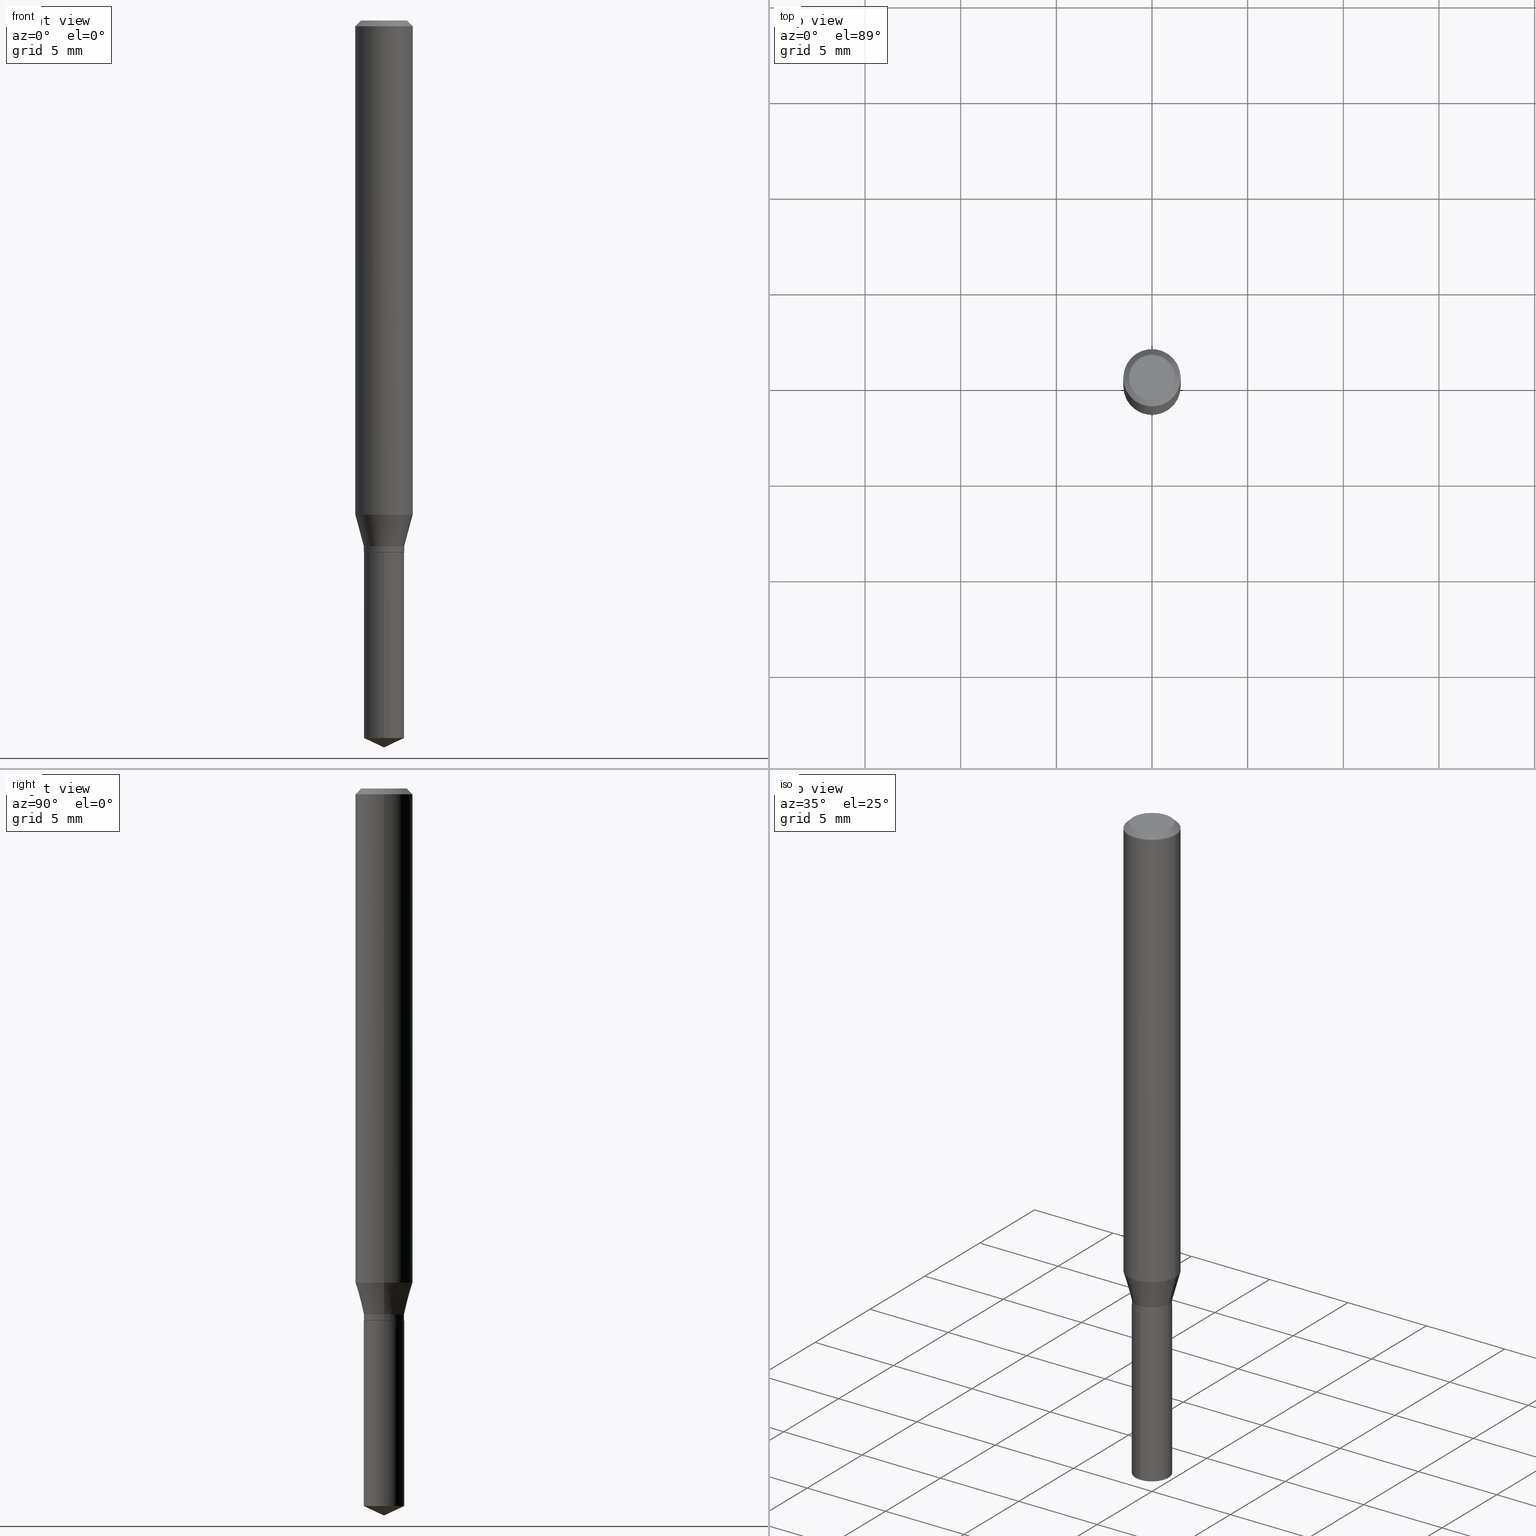
[diagram: canonical four-view strip — front | top / right | iso, engineering-drawing reading convention]
A machine part, canonical four-view strip (front | top / right | iso — engineering-drawing reading convention). The complete STEP part file that produces these views, byte-faithful:
ISO-10303-21;
HEADER;
FILE_DESCRIPTION (( 'STEP AP203' ),
    '1' );
FILE_NAME ('07958.STEP',
    '2024-04-24T07:15:58',
    ( '' ),
    ( '' ),
    'SwSTEP 2.0',
    'SolidWorks 2023',
    '' );
FILE_SCHEMA (( 'CONFIG_CONTROL_DESIGN' ));
ENDSEC;

DATA;
#1 = DIRECTION ( 'NONE',  ( -2.445468806185136597E-29, 3.491481338843145583E-15, 1.000000000000000000 ) ) ;
#2 = DIRECTION ( 'NONE',  ( -2.445458899330790108E-29, 3.491495526022433205E-15, 1.000000000000000000 ) ) ;
#3 = CARTESIAN_POINT ( 'NONE',  ( 2.676565608369631794E-29, -3.821426325363822773E-15, -1.094499999999999806 ) ) ;
#4 = VERTEX_POINT ( 'NONE', #158 ) ;
#5 = AXIS2_PLACEMENT_3D ( 'NONE', #318, #328, #486 ) ;
#6 = CARTESIAN_POINT ( 'NONE',  ( 2.676565608369631794E-29, -3.821426325363822773E-15, -1.094499999999999806 ) ) ;
#7 = VERTEX_POINT ( 'NONE', #412 ) ;
#8 = DIRECTION ( 'NONE',  ( -6.328713451373376478E-15, -0.9063077870366493816, 0.4226182617407006070 ) ) ;
#9 = ORIENTED_EDGE ( 'NONE', *, *, #202, .T. ) ;
#10 = DIRECTION ( 'NONE',  ( 1.000000000000000000, -6.982962677686268288E-15, 0.000000000000000000 ) ) ;
#11 = ORIENTED_EDGE ( 'NONE', *, *, #161, .F. ) ;
#12 = AXIS2_PLACEMENT_3D ( 'NONE', #277, #174, #350 ) ;
#13 = DIRECTION ( 'NONE',  ( -2.445458899330790108E-29, 3.491495526022433205E-15, 1.000000000000000000 ) ) ;
#14 = LOCAL_TIME ( 3, 15, 58.00000000000000000, #20 ) ;
#15 = EDGE_LOOP ( 'NONE', ( #53, #269, #306, #420 ) ) ;
#16 = APPROVAL_ROLE ( '' ) ;
#17 = DIRECTION ( 'NONE',  ( 6.982962677686265922E-15, 1.000000000000000000, -3.491495526022433599E-15 ) ) ;
#18 = DIRECTION ( 'NONE',  ( 1.000000000000000000, -6.982962677686270655E-15, 0.000000000000000000 ) ) ;
#19 = EDGE_LOOP ( 'NONE', ( #275, #231, #358, #194 ) ) ;
#20 = COORDINATED_UNIVERSAL_TIME_OFFSET ( 5, 0, .BEHIND. ) ;
#21 = AXIS2_PLACEMENT_3D ( 'NONE', #3, #164, #300 ) ;
#22 = DIRECTION ( 'NONE',  ( -2.445468806185136597E-29, 3.491481338843145583E-15, 1.000000000000000000 ) ) ;
#23 = AXIS2_PLACEMENT_3D ( 'NONE', #213, #276, #472 ) ;
#24 = ORIENTED_EDGE ( 'NONE', *, *, #238, .F. ) ;
#25 = DIRECTION ( 'NONE',  ( -2.445458899330790108E-29, 3.491495526022433599E-15, 1.000000000000000000 ) ) ;
#26 = EDGE_CURVE ( 'NONE', #7, #339, #165, .T. ) ;
#27 = ORIENTED_EDGE ( 'NONE', *, *, #180, .T. ) ;
#28 = CARTESIAN_POINT ( 'NONE',  ( -0.05905000000000000526, 3.711095515056362547E-16, -0.01181000000000007565 ) ) ;
#29 = DATE_AND_TIME ( #478, #310 ) ;
#30 = DIRECTION ( 'NONE',  ( -2.445458899330790108E-29, 3.491495526022433205E-15, 1.000000000000000000 ) ) ;
#31 = CIRCLE ( 'NONE', #397, 0.04154999999999999666 ) ;
#32 = PERSON_AND_ORGANIZATION_ROLE ( 'design_supplier' ) ;
#33 = EDGE_LOOP ( 'NONE', ( #282, #230 ) ) ;
#34 = DIRECTION ( 'NONE',  ( -2.445468806185136597E-29, 3.491481338843145583E-15, 1.000000000000000000 ) ) ;
#35 = CONICAL_SURFACE ( 'NONE', #404, 0.04104999999999999621, 0.7853981633973801113 ) ;
#36 = AXIS2_PLACEMENT_3D ( 'NONE', #428, #247, #380 ) ;
#37 = MANIFOLD_SOLID_BREP ( 'Body-Move/Copy2[2]', #98 ) ;
#38 = DIRECTION ( 'NONE',  ( -6.982962677686265133E-15, -1.000000000000000000, 3.287422375047248476E-15 ) ) ;
#39 = DIRECTION ( 'NONE',  ( 1.000000000000000000, -6.982962677686270655E-15, 0.000000000000000000 ) ) ;
#40 = PRODUCT_DEFINITION ( 'UNKNOWN', '', #46, #453 ) ;
#41 = ORIENTED_EDGE ( 'NONE', *, *, #61, .T. ) ;
#42 = CARTESIAN_POINT ( 'NONE',  ( 0.04154999999999996196, -4.109822683952264629E-15, -1.093999999999999861 ) ) ;
#43 = CC_DESIGN_PERSON_AND_ORGANIZATION_ASSIGNMENT ( #295, #32, ( #46 ) ) ;
#44 = EDGE_LOOP ( 'NONE', ( #103, #88, #229, #11 ) ) ;
#45 = CONICAL_SURFACE ( 'NONE', #109, 0.05905000000000000526, 0.7853981633974453924 ) ;
#46 = PRODUCT_DEFINITION_FORMATION_WITH_SPECIFIED_SOURCE ( 'ANY', '', #212, .NOT_KNOWN. ) ;
#47 = FACE_OUTER_BOUND ( 'NONE', #480, .T. ) ;
#48 = ORIENTED_EDGE ( 'NONE', *, *, #329, .T. ) ;
#49 = CARTESIAN_POINT ( 'NONE',  ( 2.952305067083577432E-16, 0.04154999999999484800, -1.476724916803660026 ) ) ;
#50 = ORIENTED_EDGE ( 'NONE', *, *, #61, .F. ) ;
#51 = CARTESIAN_POINT ( 'NONE',  ( 3.658672935554494692E-29, -5.223595400746700193E-15, -1.496099999999999985 ) ) ;
#52 = CARTESIAN_POINT ( 'NONE',  ( 3.611280932713112660E-29, -5.155962912318098276E-15, -1.476724916803659804 ) ) ;
#53 = ORIENTED_EDGE ( 'NONE', *, *, #256, .F. ) ;
#54 = PERSON_AND_ORGANIZATION ( #294, #346 ) ;
#55 = CIRCLE ( 'NONE', #23, 0.04154999999999996196 ) ;
#56 = AXIS2_PLACEMENT_3D ( 'NONE', #129, #387, #242 ) ;
#57 = DIRECTION ( 'NONE',  ( 1.000000000000000000, -6.982962677686266711E-15, 4.876176775795936353E-29 ) ) ;
#58 = ADVANCED_FACE ( 'NONE', ( #369 ), #427, .T. ) ;
#59 = CARTESIAN_POINT ( 'NONE',  ( -0.04154999999999996196, -3.503501189953020194E-15, -1.093999999999999861 ) ) ;
#60 = CARTESIAN_POINT ( 'NONE',  ( 2.676565608369631794E-29, -3.821426325363822773E-15, -1.094499999999999806 ) ) ;
#61 = EDGE_CURVE ( 'NONE', #237, #123, #452, .T. ) ;
#62 = FACE_OUTER_BOUND ( 'NONE', #74, .T. ) ;
#63 = CARTESIAN_POINT ( 'NONE',  ( 2.676565608369631794E-29, -3.821426325363822773E-15, -1.094499999999999806 ) ) ;
#64 = DIRECTION ( 'NONE',  ( 2.445468806185136597E-29, -3.491481338843145583E-15, -1.000000000000000000 ) ) ;
#65 = AXIS2_PLACEMENT_3D ( 'NONE', #77, #298, #78 ) ;
#66 = CARTESIAN_POINT ( 'NONE',  ( -2.901420992578375736E-16, -0.04155000000000381999, -1.094499999999999806 ) ) ;
#67 = VECTOR ( 'NONE', #466, 39.37007874015748143 ) ;
#68 = APPROVAL_ROLE ( '' ) ;
#69 = DIRECTION ( 'NONE',  ( -2.445468806185136597E-29, 3.491481338843145583E-15, 1.000000000000000000 ) ) ;
#70 = DIRECTION ( 'NONE',  ( -2.445458899330790108E-29, 3.491495526022433205E-15, 1.000000000000000000 ) ) ;
#71 = DATE_AND_TIME ( #443, #90 ) ;
#72 = ORIENTED_EDGE ( 'NONE', *, *, #442, .T. ) ;
#73 = AXIS2_PLACEMENT_3D ( 'NONE', #390, #13, #311 ) ;
#74 = EDGE_LOOP ( 'NONE', ( #147, #477, #383, #266 ) ) ;
#75 = ADVANCED_FACE ( 'NONE', ( #198 ), #408, .T. ) ;
#76 = ORIENTED_EDGE ( 'NONE', *, *, #180, .F. ) ;
#77 = CARTESIAN_POINT ( 'NONE',  ( 2.676565608369631794E-29, -3.821426325363822773E-15, -1.094499999999999806 ) ) ;
#78 = DIRECTION ( 'NONE',  ( -6.982962677686265133E-15, -1.000000000000000000, 3.287422375047248476E-15 ) ) ;
#79 = AXIS2_PLACEMENT_3D ( 'NONE', #6, #2, #38 ) ;
#80 = ORIENTED_EDGE ( 'NONE', *, *, #403, .T. ) ;
#81 = EDGE_CURVE ( 'NONE', #339, #195, #373, .T. ) ;
#82 = CARTESIAN_POINT ( 'NONE',  ( 0.04104999999999999621, -4.108076943282843915E-15, -1.094499999999999806 ) ) ;
#83 = EDGE_LOOP ( 'NONE', ( #141, #297, #193, #169 ) ) ;
#84 = CARTESIAN_POINT ( 'NONE',  ( 0.04154999999999996196, -4.067924907886146966E-15, -1.081999999999999851 ) ) ;
#85 = EDGE_CURVE ( 'NONE', #7, #334, #260, .T. ) ;
#86 = ORIENTED_EDGE ( 'NONE', *, *, #352, .T. ) ;
#87 = CARTESIAN_POINT ( 'NONE',  ( 2.486281506214680923E-29, -3.549751057999059789E-15, -1.016689110867543988 ) ) ;
#88 = ORIENTED_EDGE ( 'NONE', *, *, #421, .T. ) ;
#89 = AXIS2_PLACEMENT_3D ( 'NONE', #94, #342, #18 ) ;
#90 = LOCAL_TIME ( 3, 15, 58.00000000000000000, #321 ) ;
#91 = CARTESIAN_POINT ( 'NONE',  ( -0.04154999999999996196, -3.503501189953020194E-15, -1.081999999999999851 ) ) ;
#92 = ADVANCED_FACE ( 'NONE', ( #47 ), #35, .T. ) ;
#93 = CARTESIAN_POINT ( 'NONE',  ( 2.888098660104664642E-31, -4.123439461173780879E-17, -0.01181000000000007565 ) ) ;
#94 = CARTESIAN_POINT ( 'NONE',  ( 2.676565608369631794E-29, -3.821426325363822773E-15, -1.094499999999999806 ) ) ;
#95 = EDGE_LOOP ( 'NONE', ( #186, #48, #27, #127 ) ) ;
#96 = CYLINDRICAL_SURFACE ( 'NONE', #216, 0.04154999999999996196 ) ;
#97 = CARTESIAN_POINT ( 'NONE',  ( -0.05905000000000000526, -1.375917240839058674E-15, -0.01181000000000007565 ) ) ;
#98 = CLOSED_SHELL ( 'NONE', ( #92, #458, #360, #368, #489, #475, #332, #251, #199, #118, #146, #58 ) ) ;
#99 = DIRECTION ( 'NONE',  ( 1.000000000000000000, -6.982962677686267499E-15, 4.876176775795935793E-29 ) ) ;
#100 = AXIS2_PLACEMENT_3D ( 'NONE', #433, #278, #57 ) ;
#101 = EDGE_CURVE ( 'NONE', #464, #123, #288, .T. ) ;
#102 = FACE_OUTER_BOUND ( 'NONE', #374, .T. ) ;
#103 = ORIENTED_EDGE ( 'NONE', *, *, #184, .T. ) ;
#104 = PERSON_AND_ORGANIZATION_ROLE ( 'creator' ) ;
#105 = DIRECTION ( 'NONE',  ( -2.445458899330790108E-29, 3.491495526022433205E-15, 1.000000000000000000 ) ) ;
#106 = DIRECTION ( 'NONE',  ( -2.445468806185136597E-29, 3.491481338843145583E-15, 1.000000000000000000 ) ) ;
#107 = FACE_OUTER_BOUND ( 'NONE', #270, .T. ) ;
#108 = LINE ( 'NONE', #28, #223 ) ;
#109 = AXIS2_PLACEMENT_3D ( 'NONE', #93, #64, #307 ) ;
#110 = CC_DESIGN_DATE_AND_TIME_ASSIGNMENT ( #71, #112, ( #430 ) ) ;
#111 = DIRECTION ( 'NONE',  ( -0.7071067811865454633, 2.468850131082235367E-15, -0.7071067811865495711 ) ) ;
#112 = DATE_TIME_ROLE ( 'classification_date' ) ;
#113 = PERSON_AND_ORGANIZATION ( #294, #346 ) ;
#114 = ORIENTED_EDGE ( 'NONE', *, *, #184, .F. ) ;
#115 = AXIS2_PLACEMENT_3D ( 'NONE', #392, #343, #215 ) ;
#116 = ORIENTED_EDGE ( 'NONE', *, *, #386, .F. ) ;
#117 = DIRECTION ( 'NONE',  ( -2.445468806185136597E-29, 3.491481338843145583E-15, 1.000000000000000000 ) ) ;
#118 = ADVANCED_FACE ( 'NONE', ( #168 ), #451, .F. ) ;
#119 = DIRECTION ( 'NONE',  ( 1.000000000000000000, -6.982962677686270655E-15, 0.000000000000000000 ) ) ;
#120 = CIRCLE ( 'NONE', #89, 0.04104999999999999621 ) ;
#121 = CARTESIAN_POINT ( 'NONE',  ( 0.05905000000000006771, -4.123439461173745257E-16, 2.879382386107503723E-30 ) ) ;
#122 = EDGE_LOOP ( 'NONE', ( #409, #303, #41, #171 ) ) ;
#123 = VERTEX_POINT ( 'NONE', #42 ) ;
#124 = CARTESIAN_POINT ( 'NONE',  ( -2.901420992578375736E-16, -0.04155000000000381999, -1.094499999999999806 ) ) ;
#125 = EDGE_CURVE ( 'NONE', #304, #4, #136, .T. ) ;
#126 = AXIS2_PLACEMENT_3D ( 'NONE', #160, #117, #262 ) ;
#127 = ORIENTED_EDGE ( 'NONE', *, *, #352, .F. ) ;
#128 = CYLINDRICAL_SURFACE ( 'NONE', #115, 0.04154999999999996196 ) ;
#129 = CARTESIAN_POINT ( 'NONE',  ( 2.645997248292317363E-29, -3.777782808628282818E-15, -1.081999999999999851 ) ) ;
#130 = ORIENTED_EDGE ( 'NONE', *, *, #319, .T. ) ;
#131 = PERSON_AND_ORGANIZATION_ROLE ( 'design_owner' ) ;
#132 = DIRECTION ( 'NONE',  ( -2.445458899330790108E-29, 3.491495526022433599E-15, 1.000000000000000000 ) ) ;
#133 = ORIENTED_EDGE ( 'NONE', *, *, #125, .T. ) ;
#134 = EDGE_CURVE ( 'NONE', #339, #7, #317, .T. ) ;
#135 = CARTESIAN_POINT ( 'NONE',  ( 0.05905000000000000526, -4.463468013801467941E-16, -0.01181000000000007565 ) ) ;
#136 = CIRCLE ( 'NONE', #65, 0.04154999999999999666 ) ;
#137 = CARTESIAN_POINT ( 'NONE',  ( 8.265746106709734507E-48, -1.180129479067563789E-33, -3.380025165646692144E-19 ) ) ;
#138 = AXIS2_PLACEMENT_3D ( 'NONE', #137, #106, #312 ) ;
#139 = DIRECTION ( 'NONE',  ( -0.7071067811864992780, 7.493145998870180611E-15, 0.7071067811865957564 ) ) ;
#140 = EDGE_CURVE ( 'NONE', #394, #467, #190, .T. ) ;
#141 = ORIENTED_EDGE ( 'NONE', *, *, #421, .F. ) ;
#142 = DATE_AND_TIME ( #474, #14 ) ;
#143 = LINE ( 'NONE', #257, #484 ) ;
#144 = COORDINATED_UNIVERSAL_TIME_OFFSET ( 5, 0, .BEHIND. ) ;
#145 = DIRECTION ( 'NONE',  ( -6.982962677686265133E-15, -1.000000000000000000, 3.287422375047248476E-15 ) ) ;
#146 = ADVANCED_FACE ( 'NONE', ( #335 ), #454, .F. ) ;
#147 = ORIENTED_EDGE ( 'NONE', *, *, #202, .F. ) ;
#148 = COORDINATED_UNIVERSAL_TIME_OFFSET ( 5, 0, .BEHIND. ) ;
#149 = AXIS2_PLACEMENT_3D ( 'NONE', #52, #105, #419 ) ;
#150 = CARTESIAN_POINT ( 'NONE',  ( -2.901420992578283045E-16, -0.04155000000000516613, -1.476724916803659582 ) ) ;
#151 = CIRCLE ( 'NONE', #138, 0.04724000000000000421 ) ;
#152 = APPROVAL_PERSON_ORGANIZATION ( #54, #309, #16 ) ;
#153 = APPLICATION_CONTEXT ( 'configuration controlled 3d designs of mechanical parts and assemblies' ) ;
#154 = PERSON_AND_ORGANIZATION ( #294, #346 ) ;
#155 = CARTESIAN_POINT ( 'NONE',  ( 2.645997248292317363E-29, -3.777782808628282818E-15, -1.081999999999999851 ) ) ;
#156 = EDGE_LOOP ( 'NONE', ( #72, #206 ) ) ;
#157 = VECTOR ( 'NONE', #461, 39.37007874015747433 ) ;
#158 = CARTESIAN_POINT ( 'NONE',  ( 2.952305067083576939E-16, 0.04154999999999617333, -1.094500000000000028 ) ) ;
#159 = AXIS2_PLACEMENT_3D ( 'NONE', #183, #69, #357 ) ;
#160 = CARTESIAN_POINT ( 'NONE',  ( 8.265746106709734507E-48, -1.180129479067563789E-33, -3.380025165646692144E-19 ) ) ;
#161 = EDGE_CURVE ( 'NONE', #431, #7, #459, .T. ) ;
#162 = DIRECTION ( 'NONE',  ( -2.445468806185136597E-29, 3.491481338843145583E-15, 1.000000000000000000 ) ) ;
#163 = ORIENTED_EDGE ( 'NONE', *, *, #485, .F. ) ;
#164 = DIRECTION ( 'NONE',  ( -2.438088387897960049E-29, 3.491481338843145188E-15, 1.000000000000000000 ) ) ;
#165 = CIRCLE ( 'NONE', #253, 0.05905000000000013016 ) ;
#166 = AXIS2_PLACEMENT_3D ( 'NONE', #63, #349, #17 ) ;
#167 = VERTEX_POINT ( 'NONE', #91 ) ;
#168 = FACE_OUTER_BOUND ( 'NONE', #156, .T. ) ;
#169 = ORIENTED_EDGE ( 'NONE', *, *, #134, .F. ) ;
#170 = LINE ( 'NONE', #425, #327 ) ;
#171 = ORIENTED_EDGE ( 'NONE', *, *, #101, .F. ) ;
#172 = FACE_OUTER_BOUND ( 'NONE', #320, .T. ) ;
#173 = CONICAL_SURFACE ( 'NONE', #73, 84.42940631927444883, 1.134464013796316451 ) ;
#174 = DIRECTION ( 'NONE',  ( 0.000000000000000000, 0.000000000000000000, 1.000000000000000000 ) ) ;
#175 = DIRECTION ( 'NONE',  ( -2.445468806185136877E-29, 3.491481338843145188E-15, 1.000000000000000000 ) ) ;
#176 = EDGE_CURVE ( 'NONE', #416, #222, #417, .T. ) ;
#177 = LENGTH_MEASURE_WITH_UNIT ( LENGTH_MEASURE( 0.02539999999999999897 ), #395 );
#178 = DIRECTION ( 'NONE',  ( -6.982962677686265133E-15, -1.000000000000000000, 3.287422375047248476E-15 ) ) ;
#179 = MECHANICAL_CONTEXT ( 'NONE', #153, 'mechanical' ) ;
#180 = EDGE_CURVE ( 'NONE', #334, #195, #483, .T. ) ;
#181 = CARTESIAN_POINT ( 'NONE',  ( -0.04154999999999996196, 2.952305067083213570E-16, -2.043817530000911586E-30 ) ) ;
#182 = VECTOR ( 'NONE', #268, 39.37007874015748143 ) ;
#183 = CARTESIAN_POINT ( 'NONE',  ( 0.000000000000000000, 0.000000000000000000, 0.000000000000000000 ) ) ;
#184 = EDGE_CURVE ( 'NONE', #431, #167, #55, .T. ) ;
#185 = CARTESIAN_POINT ( 'NONE',  ( 0.04724000000000000421, -3.852183633974369838E-16, -3.380025165621689721E-19 ) ) ;
#186 = ORIENTED_EDGE ( 'NONE', *, *, #140, .F. ) ;
#187 = CARTESIAN_POINT ( 'NONE',  ( 2.676565608369631794E-29, -3.821426325363822773E-15, -1.094499999999999806 ) ) ;
#188 = CC_DESIGN_PERSON_AND_ORGANIZATION_ASSIGNMENT ( #448, #362, ( #46 ) ) ;
#189 = APPROVAL_DATE_TIME ( #29, #445 ) ;
#190 = CIRCLE ( 'NONE', #126, 0.04724000000000000421 ) ;
#191 = FACE_OUTER_BOUND ( 'NONE', #15, .T. ) ;
#192 = AXIS2_PLACEMENT_3D ( 'NONE', #284, #255, #353 ) ;
#193 = ORIENTED_EDGE ( 'NONE', *, *, #161, .T. ) ;
#194 = ORIENTED_EDGE ( 'NONE', *, *, #391, .F. ) ;
#195 = VERTEX_POINT ( 'NONE', #97 ) ;
#196 = DIRECTION ( 'NONE',  ( -1.000000000000000000, 6.982962677686265922E-15, -4.876176775795935793E-29 ) ) ;
#197 = DIRECTION ( 'NONE',  ( 2.438088387897960049E-29, -3.491481338843145188E-15, -1.000000000000000000 ) ) ;
#198 = FACE_OUTER_BOUND ( 'NONE', #19, .T. ) ;
#199 = ADVANCED_FACE ( 'NONE', ( #274 ), #281, .T. ) ;
#200 = DIRECTION ( 'NONE',  ( 1.000000000000000000, -6.982962677686265133E-15, 0.000000000000000000 ) ) ;
#201 = LINE ( 'NONE', #308, #67 ) ;
#202 = EDGE_CURVE ( 'NONE', #464, #167, #305, .T. ) ;
#203 = UNCERTAINTY_MEASURE_WITH_UNIT (LENGTH_MEASURE( 1.000000000000000082E-05 ), #207, 'distance_accuracy_value', 'NONE');
#204 = ADVANCED_FACE ( 'NONE', ( #172 ), #173, .T. ) ;
#205 = CARTESIAN_POINT ( 'NONE',  ( 3.658651059288795076E-29, -5.223626456482161457E-15, -1.496099999999999985 ) ) ;
#206 = ORIENTED_EDGE ( 'NONE', *, *, #140, .T. ) ;
#207 =( CONVERSION_BASED_UNIT ( 'INCH', #177 ) LENGTH_UNIT ( ) NAMED_UNIT ( #218 ) );
#208 = FACE_OUTER_BOUND ( 'NONE', #470, .T. ) ;
#209 = CC_DESIGN_PERSON_AND_ORGANIZATION_ASSIGNMENT ( #326, #406, ( #430 ) ) ;
#210 = DIRECTION ( 'NONE',  ( -2.445468806185136597E-29, 3.491481338843145583E-15, 1.000000000000000000 ) ) ;
#211 = DIRECTION ( 'NONE',  ( -2.445458899330790108E-29, 3.491495526022433205E-15, 1.000000000000000000 ) ) ;
#212 = PRODUCT ( '07958', '07958', '', ( #179 ) ) ;
#213 = CARTESIAN_POINT ( 'NONE',  ( 2.645997248292317363E-29, -3.777782808628282818E-15, -1.081999999999999851 ) ) ;
#214 = EDGE_CURVE ( 'NONE', #123, #431, #201, .T. ) ;
#215 = DIRECTION ( 'NONE',  ( 1.000000000000000000, -6.982962677686267499E-15, 4.876176775795935793E-29 ) ) ;
#216 = AXIS2_PLACEMENT_3D ( 'NONE', #468, #210, #99 ) ;
#217 = CARTESIAN_POINT ( 'NONE',  ( 3.658651059288794515E-29, -5.223626456482161457E-15, -1.496099999999999985 ) ) ;
#218 = DIMENSIONAL_EXPONENTS ( 1.000000000000000000, 0.000000000000000000, 0.000000000000000000, 0.000000000000000000, 0.000000000000000000, 0.000000000000000000, 0.000000000000000000 ) ;
#219 = CARTESIAN_POINT ( 'NONE',  ( -0.04104999999999999621, -3.527099305160190226E-15, -1.094499999999999806 ) ) ;
#220 = DATE_AND_TIME ( #324, #355 ) ;
#221 = DIRECTION ( 'NONE',  ( -0.2588190451025214611, 5.211531920934551042E-15, 0.9659258262890682012 ) ) ;
#222 = VERTEX_POINT ( 'NONE', #49 ) ;
#223 = VECTOR ( 'NONE', #111, 39.37007874015748143 ) ;
#224 = EDGE_CURVE ( 'NONE', #237, #367, #120, .T. ) ;
#225 = ADVANCED_BREP_SHAPE_REPRESENTATION ( '07958', ( #364, #37, #12 ), #370 ) ;
#226 = CARTESIAN_POINT ( 'NONE',  ( 2.486281506214680923E-29, -3.549751057999059789E-15, -1.016689110867543988 ) ) ;
#227 = EDGE_CURVE ( 'NONE', #167, #431, #447, .T. ) ;
#228 = DIRECTION ( 'NONE',  ( 1.000000000000000000, -6.982962677686265133E-15, 0.000000000000000000 ) ) ;
#229 = ORIENTED_EDGE ( 'NONE', *, *, #26, .F. ) ;
#230 = ORIENTED_EDGE ( 'NONE', *, *, #423, .F. ) ;
#231 = ORIENTED_EDGE ( 'NONE', *, *, #256, .T. ) ;
#232 = ORIENTED_EDGE ( 'NONE', *, *, #85, .F. ) ;
#233 = APPROVAL ( #359, 'UNSPECIFIED' ) ;
#234 = ORIENTED_EDGE ( 'NONE', *, *, #403, .F. ) ;
#235 = CARTESIAN_POINT ( 'NONE',  ( 2.676565608369631794E-29, -3.821426325363822773E-15, -1.094499999999999806 ) ) ;
#236 = AXIS2_PLACEMENT_3D ( 'NONE', #155, #325, #363 ) ;
#237 = VERTEX_POINT ( 'NONE', #463 ) ;
#238 = EDGE_CURVE ( 'NONE', #376, #416, #382, .T. ) ;
#239 = CARTESIAN_POINT ( 'NONE',  ( 2.888098660104664642E-31, -4.123439461173780879E-17, -0.01181000000000007565 ) ) ;
#240 = ORIENTED_EDGE ( 'NONE', *, *, #134, .T. ) ;
#241 =( NAMED_UNIT ( * ) SI_UNIT ( $, .STERADIAN. ) SOLID_ANGLE_UNIT ( ) );
#242 = DIRECTION ( 'NONE',  ( 1.000000000000000000, -6.982962677686265133E-15, 0.000000000000000000 ) ) ;
#243 = LINE ( 'NONE', #51, #377 ) ;
#244 = LINE ( 'NONE', #473, #265 ) ;
#245 = PRODUCT_DEFINITION_SHAPE ( 'NONE', 'NONE',  #40 ) ;
#246 = APPLICATION_PROTOCOL_DEFINITION ( 'international standard', 'config_control_design', 1994, #402 ) ;
#247 = DIRECTION ( 'NONE',  ( 2.445468806185136597E-29, -3.491481338843145583E-15, -1.000000000000000000 ) ) ;
#248 = ORIENTED_EDGE ( 'NONE', *, *, #176, .F. ) ;
#249 = CARTESIAN_POINT ( 'NONE',  ( -0.04724000000000000421, 3.504923541997677355E-16, -3.380025165670481712E-19 ) ) ;
#250 = CARTESIAN_POINT ( 'NONE',  ( -9.261924752013118283E-28, 1.322368428517963298E-13, 37.87397874015748300 ) ) ;
#251 = ADVANCED_FACE ( 'NONE', ( #344 ), #469, .T. ) ;
#252 = CARTESIAN_POINT ( 'NONE',  ( -0.05905000000000013016, -3.130175572532719507E-15, -1.016689110867543988 ) ) ;
#253 = AXIS2_PLACEMENT_3D ( 'NONE', #87, #162, #228 ) ;
#254 = CONICAL_SURFACE ( 'NONE', #354, 0.04154999999999996196, 0.2617993877991501295 ) ;
#255 = DIRECTION ( 'NONE',  ( -2.445468806185136597E-29, 3.491481338843145583E-15, 1.000000000000000000 ) ) ;
#256 = EDGE_CURVE ( 'NONE', #222, #4, #170, .T. ) ;
#257 = CARTESIAN_POINT ( 'NONE',  ( -0.04154999999999996196, -3.482552301919960968E-15, -1.081999999999999851 ) ) ;
#258 = AXIS2_PLACEMENT_3D ( 'NONE', #60, #211, #178 ) ;
#259 = SHAPE_DEFINITION_REPRESENTATION ( #245, #225 ) ;
#260 = LINE ( 'NONE', #121, #345 ) ;
#261 = ADVANCED_FACE ( 'NONE', ( #208 ), #411, .T. ) ;
#262 = DIRECTION ( 'NONE',  ( 1.000000000000000000, -6.982962677686266711E-15, 4.876185090822587894E-29 ) ) ;
#263 = AXIS2_PLACEMENT_3D ( 'NONE', #239, #422, #10 ) ;
#264 = ORIENTED_EDGE ( 'NONE', *, *, #366, .F. ) ;
#265 = VECTOR ( 'NONE', #139, 39.37007874015748143 ) ;
#266 = ORIENTED_EDGE ( 'NONE', *, *, #227, .F. ) ;
#267 = CC_DESIGN_PERSON_AND_ORGANIZATION_ASSIGNMENT ( #435, #104, ( #40 ) ) ;
#268 = DIRECTION ( 'NONE',  ( 0.7071067811864992780, -2.468850131081751401E-15, 0.7071067811865957564 ) ) ;
#269 = ORIENTED_EDGE ( 'NONE', *, *, #386, .T. ) ;
#270 = EDGE_LOOP ( 'NONE', ( #462, #444, #76, #232 ) ) ;
#271 = LINE ( 'NONE', #135, #388 ) ;
#272 = ORIENTED_EDGE ( 'NONE', *, *, #214, .F. ) ;
#273 = APPLICATION_PROTOCOL_DEFINITION ( 'international standard', 'config_control_design', 1994, #153 ) ;
#274 = FACE_OUTER_BOUND ( 'NONE', #336, .T. ) ;
#275 = ORIENTED_EDGE ( 'NONE', *, *, #176, .T. ) ;
#276 = DIRECTION ( 'NONE',  ( -2.445468806185136597E-29, 3.491481338843145583E-15, 1.000000000000000000 ) ) ;
#277 = CARTESIAN_POINT ( 'NONE',  ( 0.000000000000000000, 0.000000000000000000, 0.000000000000000000 ) ) ;
#278 = DIRECTION ( 'NONE',  ( -2.445468806185136597E-29, 3.491481338843145583E-15, 1.000000000000000000 ) ) ;
#279 = EDGE_CURVE ( 'NONE', #367, #464, #244, .T. ) ;
#280 = VECTOR ( 'NONE', #375, 39.37007874015748143 ) ;
#281 = CONICAL_SURFACE ( 'NONE', #36, 0.05905000000000000526, 0.7853981633974453924 ) ;
#282 = ORIENTED_EDGE ( 'NONE', *, *, #224, .F. ) ;
#283 = FACE_OUTER_BOUND ( 'NONE', #83, .T. ) ;
#284 = CARTESIAN_POINT ( 'NONE',  ( 2.888098660104664642E-31, -4.123439461173780879E-17, -0.01181000000000007565 ) ) ;
#285 = ORIENTED_EDGE ( 'NONE', *, *, #442, .F. ) ;
#286 = ADVANCED_FACE ( 'NONE', ( #102 ), #393, .F. ) ;
#287 = CARTESIAN_POINT ( 'NONE',  ( 3.611280932713112660E-29, -5.155962912318098276E-15, -1.476724916803659804 ) ) ;
#288 = CIRCLE ( 'NONE', #385, 0.04154999999999996196 ) ;
#289 = APPROVAL_ROLE ( '' ) ;
#290 = AXIS2_PLACEMENT_3D ( 'NONE', #250, #316, #313 ) ;
#291 = APPROVAL_PERSON_ORGANIZATION ( #154, #233, #68 ) ;
#292 = DIRECTION ( 'NONE',  ( 1.000000000000000000, -6.982962677686265133E-15, 0.000000000000000000 ) ) ;
#293 = DATE_TIME_ROLE ( 'creation_date' ) ;
#294 = PERSON ( 'UNSPECIFIED', 'UNSPECIFIED', 'UNSPECIFIED', ('UNSPECIFIED'), ('UNSPECIFIED'), ('UNSPECIFIED') ) ;
#295 = PERSON_AND_ORGANIZATION ( #294, #346 ) ;
#296 = DIRECTION ( 'NONE',  ( -2.445468806185136597E-29, 3.491481338843145583E-15, 1.000000000000000000 ) ) ;
#297 = ORIENTED_EDGE ( 'NONE', *, *, #227, .T. ) ;
#298 = DIRECTION ( 'NONE',  ( -2.445458899330790108E-29, 3.491495526022433205E-15, 1.000000000000000000 ) ) ;
#299 = CIRCLE ( 'NONE', #490, 0.04154999999999996196 ) ;
#300 = DIRECTION ( 'NONE',  ( 1.000000000000000000, -6.982962677686265922E-15, 4.876176775795935793E-29 ) ) ;
#301 = CC_DESIGN_APPROVAL ( #445, ( #430 ) ) ;
#302 = EDGE_LOOP ( 'NONE', ( #413, #240, #460, #264 ) ) ;
#303 = ORIENTED_EDGE ( 'NONE', *, *, #423, .T. ) ;
#304 = VERTEX_POINT ( 'NONE', #124 ) ;
#305 = LINE ( 'NONE', #181, #465 ) ;
#306 = ORIENTED_EDGE ( 'NONE', *, *, #391, .T. ) ;
#307 = DIRECTION ( 'NONE',  ( -1.000000000000000000, 6.982962677686265922E-15, 0.000000000000000000 ) ) ;
#308 = CARTESIAN_POINT ( 'NONE',  ( 0.04154999999999996196, -2.901420992578641483E-16, 2.026051450343209565E-30 ) ) ;
#309 = APPROVAL ( #426, 'UNSPECIFIED' ) ;
#310 = LOCAL_TIME ( 3, 15, 58.00000000000000000, #144 ) ;
#311 = DIRECTION ( 'NONE',  ( -6.982962677686266711E-15, -1.000000000000000000, 3.520397390770449137E-15 ) ) ;
#312 = DIRECTION ( 'NONE',  ( 1.000000000000000000, -6.982962677686266711E-15, 4.876185090822587894E-29 ) ) ;
#313 = DIRECTION ( 'NONE',  ( -6.982962677686266711E-15, -1.000000000000000000, 3.520397390770449137E-15 ) ) ;
#314 = CC_DESIGN_PERSON_AND_ORGANIZATION_ASSIGNMENT ( #381, #131, ( #212 ) ) ;
#315 = FACE_OUTER_BOUND ( 'NONE', #95, .T. ) ;
#316 = DIRECTION ( 'NONE',  ( -2.445458899330790108E-29, 3.491495526022433205E-15, 1.000000000000000000 ) ) ;
#317 = CIRCLE ( 'NONE', #330, 0.05905000000000013016 ) ;
#318 = CARTESIAN_POINT ( 'NONE',  ( 2.676565608369631794E-29, -3.821426325363822773E-15, -1.094499999999999806 ) ) ;
#319 = EDGE_CURVE ( 'NONE', #4, #304, #429, .T. ) ;
#320 = EDGE_LOOP ( 'NONE', ( #163, #415, #116 ) ) ;
#321 = COORDINATED_UNIVERSAL_TIME_OFFSET ( 5, 0, .BEHIND. ) ;
#322 = LINE ( 'NONE', #66, #457 ) ;
#323 = ORIENTED_EDGE ( 'NONE', *, *, #279, .T. ) ;
#324 = CALENDAR_DATE ( 2024, 24, 4 ) ;
#325 = DIRECTION ( 'NONE',  ( -2.445468806185136597E-29, 3.491481338843145583E-15, 1.000000000000000000 ) ) ;
#326 = PERSON_AND_ORGANIZATION ( #294, #346 ) ;
#327 = VECTOR ( 'NONE', #132, 39.37007874015748143 ) ;
#328 = DIRECTION ( 'NONE',  ( -2.445468806185136597E-29, 3.491481338843145583E-15, 1.000000000000000000 ) ) ;
#329 = EDGE_CURVE ( 'NONE', #394, #334, #271, .T. ) ;
#330 = AXIS2_PLACEMENT_3D ( 'NONE', #226, #1, #414 ) ;
#331 = CARTESIAN_POINT ( 'NONE',  ( -0.05905000000000006771, 4.195754854663396409E-16, -2.904631170795525045E-30 ) ) ;
#332 = ADVANCED_FACE ( 'NONE', ( #283 ), #254, .T. ) ;
#333 = CARTESIAN_POINT ( 'NONE',  ( 2.676565608369631794E-29, -3.821426325363822773E-15, -1.094499999999999806 ) ) ;
#334 = VERTEX_POINT ( 'NONE', #440 ) ;
#335 = FACE_OUTER_BOUND ( 'NONE', #33, .T. ) ;
#336 = EDGE_LOOP ( 'NONE', ( #449, #285, #86, #434 ) ) ;
#337 = VECTOR ( 'NONE', #8, 39.37007874015748143 ) ;
#338 = CARTESIAN_POINT ( 'NONE',  ( 2.675342873966538993E-29, -3.819680584694400481E-15, -1.093999999999999861 ) ) ;
#339 = VERTEX_POINT ( 'NONE', #252 ) ;
#340 = DIRECTION ( 'NONE',  ( -2.445468806185136877E-29, 3.491481338843145188E-15, 1.000000000000000000 ) ) ;
#341 = ADVANCED_FACE ( 'NONE', ( #191 ), #401, .T. ) ;
#342 = DIRECTION ( 'NONE',  ( -2.445468806185136597E-29, 3.491481338843145583E-15, 1.000000000000000000 ) ) ;
#343 = DIRECTION ( 'NONE',  ( -2.445468806185136597E-29, 3.491481338843145583E-15, 1.000000000000000000 ) ) ;
#344 = FACE_OUTER_BOUND ( 'NONE', #302, .T. ) ;
#345 = VECTOR ( 'NONE', #340, 39.37007874015748143 ) ;
#346 = ORGANIZATION ( 'UNSPECIFIED', 'UNSPECIFIED', '' ) ;
#347 = ORIENTED_EDGE ( 'NONE', *, *, #224, .T. ) ;
#348 = FACE_OUTER_BOUND ( 'NONE', #372, .T. ) ;
#349 = DIRECTION ( 'NONE',  ( 2.445458899330789267E-29, -3.491495526022433599E-15, -1.000000000000000000 ) ) ;
#350 = DIRECTION ( 'NONE',  ( 1.000000000000000000, 0.000000000000000000, 0.000000000000000000 ) ) ;
#351 = DIRECTION ( 'NONE',  ( 0.7071067811865454633, -7.319954787623248157E-15, -0.7071067811865495711 ) ) ;
#352 = EDGE_CURVE ( 'NONE', #467, #195, #108, .T. ) ;
#353 = DIRECTION ( 'NONE',  ( 1.000000000000000000, -6.982962677686268288E-15, 0.000000000000000000 ) ) ;
#354 = AXIS2_PLACEMENT_3D ( 'NONE', #437, #22, #292 ) ;
#355 = LOCAL_TIME ( 3, 15, 58.00000000000000000, #148 ) ;
#356 =( NAMED_UNIT ( * ) PLANE_ANGLE_UNIT ( ) SI_UNIT ( $, .RADIAN. ) );
#357 = DIRECTION ( 'NONE',  ( 1.000000000000000000, -6.982962677686266711E-15, 4.876176775795936353E-29 ) ) ;
#358 = ORIENTED_EDGE ( 'NONE', *, *, #125, .F. ) ;
#359 = APPROVAL_STATUS ( 'not_yet_approved' ) ;
#360 = ADVANCED_FACE ( 'NONE', ( #107 ), #436, .T. ) ;
#361 = FACE_OUTER_BOUND ( 'NONE', #44, .T. ) ;
#362 = PERSON_AND_ORGANIZATION_ROLE ( 'creator' ) ;
#363 = DIRECTION ( 'NONE',  ( 1.000000000000000000, -6.982962677686265133E-15, 0.000000000000000000 ) ) ;
#364 = MANIFOLD_SOLID_BREP ( 'Body-Move/Copy2[1]', #455 ) ;
#365 = CC_DESIGN_APPROVAL ( #309, ( #40 ) ) ;
#366 = EDGE_CURVE ( 'NONE', #195, #334, #438, .T. ) ;
#367 = VERTEX_POINT ( 'NONE', #219 ) ;
#368 = ADVANCED_FACE ( 'NONE', ( #361 ), #456, .T. ) ;
#369 = FACE_OUTER_BOUND ( 'NONE', #122, .T. ) ;
#370 =( GEOMETRIC_REPRESENTATION_CONTEXT ( 3 ) GLOBAL_UNCERTAINTY_ASSIGNED_CONTEXT ( ( #203 ) ) GLOBAL_UNIT_ASSIGNED_CONTEXT ( ( #207, #356, #241 ) ) REPRESENTATION_CONTEXT ( 'NONE', 'WORKASPACE' ) );
#371 = CC_DESIGN_SECURITY_CLASSIFICATION ( #430, ( #46 ) ) ;
#372 = EDGE_LOOP ( 'NONE', ( #80, #9, #114, #272 ) ) ;
#373 = LINE ( 'NONE', #331, #280 ) ;
#374 = EDGE_LOOP ( 'NONE', ( #133, #130 ) ) ;
#375 = DIRECTION ( 'NONE',  ( -2.445468806185136877E-29, 3.491481338843145188E-15, 1.000000000000000000 ) ) ;
#376 = VERTEX_POINT ( 'NONE', #217 ) ;
#377 = VECTOR ( 'NONE', #471, 39.37007874015748143 ) ;
#378 = DIRECTION ( 'NONE',  ( -2.445468806185136597E-29, 3.491481338843145583E-15, 1.000000000000000000 ) ) ;
#379 = ORIENTED_EDGE ( 'NONE', *, *, #485, .T. ) ;
#380 = DIRECTION ( 'NONE',  ( -1.000000000000000000, 6.982962677686265922E-15, 0.000000000000000000 ) ) ;
#381 = PERSON_AND_ORGANIZATION ( #294, #346 ) ;
#382 = LINE ( 'NONE', #205, #337 ) ;
#383 = ORIENTED_EDGE ( 'NONE', *, *, #214, .T. ) ;
#384 = CALENDAR_DATE ( 2024, 24, 4 ) ;
#385 = AXIS2_PLACEMENT_3D ( 'NONE', #338, #34, #200 ) ;
#386 = EDGE_CURVE ( 'NONE', #222, #416, #31, .T. ) ;
#387 = DIRECTION ( 'NONE',  ( -2.445468806185136597E-29, 3.491481338843145583E-15, 1.000000000000000000 ) ) ;
#388 = VECTOR ( 'NONE', #351, 39.37007874015748143 ) ;
#389 = DATE_AND_TIME ( #384, #450 ) ;
#390 = CARTESIAN_POINT ( 'NONE',  ( -9.261924752013118283E-28, 1.322368428517963298E-13, 37.87397874015748300 ) ) ;
#391 = EDGE_CURVE ( 'NONE', #416, #304, #322, .T. ) ;
#392 = CARTESIAN_POINT ( 'NONE',  ( 0.000000000000000000, 0.000000000000000000, 0.000000000000000000 ) ) ;
#393 = PLANE ( 'NONE',  #166 ) ;
#394 = VERTEX_POINT ( 'NONE', #185 ) ;
#395 =( LENGTH_UNIT ( ) NAMED_UNIT ( * ) SI_UNIT ( $, .METRE. ) );
#396 = DIRECTION ( 'NONE',  ( -6.982962677686265133E-15, -1.000000000000000000, 6.574844750094496952E-15 ) ) ;
#397 = AXIS2_PLACEMENT_3D ( 'NONE', #287, #70, #396 ) ;
#398 = CC_DESIGN_APPROVAL ( #233, ( #46 ) ) ;
#399 = CC_DESIGN_DATE_AND_TIME_ASSIGNMENT ( #142, #293, ( #40 ) ) ;
#400 = DIRECTION ( 'NONE',  ( -2.445468806185136597E-29, 3.491481338843145583E-15, 1.000000000000000000 ) ) ;
#401 = CYLINDRICAL_SURFACE ( 'NONE', #405, 0.04154999999999999666 ) ;
#402 = APPLICATION_CONTEXT ( 'configuration controlled 3d designs of mechanical parts and assemblies' ) ;
#403 = EDGE_CURVE ( 'NONE', #123, #464, #299, .T. ) ;
#404 = AXIS2_PLACEMENT_3D ( 'NONE', #333, #296, #39 ) ;
#405 = AXIS2_PLACEMENT_3D ( 'NONE', #187, #30, #145 ) ;
#406 = PERSON_AND_ORGANIZATION_ROLE ( 'classification_officer' ) ;
#407 = CARTESIAN_POINT ( 'NONE',  ( 4.132873053354867254E-48, -5.900647395337818946E-34, -1.690012582823346072E-19 ) ) ;
#408 = CYLINDRICAL_SURFACE ( 'NONE', #79, 0.04154999999999999666 ) ;
#409 = ORIENTED_EDGE ( 'NONE', *, *, #279, .F. ) ;
#410 = AXIS2_PLACEMENT_3D ( 'NONE', #235, #378, #119 ) ;
#411 = CONICAL_SURFACE ( 'NONE', #290, 84.42940631927444883, 1.134464013796316451 ) ;
#412 = CARTESIAN_POINT ( 'NONE',  ( 0.05905000000000013016, -3.962095004116434314E-15, -1.016689110867543988 ) ) ;
#413 = ORIENTED_EDGE ( 'NONE', *, *, #81, .F. ) ;
#414 = DIRECTION ( 'NONE',  ( 1.000000000000000000, -6.982962677686265133E-15, 0.000000000000000000 ) ) ;
#415 = ORIENTED_EDGE ( 'NONE', *, *, #238, .T. ) ;
#416 = VERTEX_POINT ( 'NONE', #150 ) ;
#417 = CIRCLE ( 'NONE', #149, 0.04154999999999999666 ) ;
#418 = CIRCLE ( 'NONE', #5, 0.04104999999999999621 ) ;
#419 = DIRECTION ( 'NONE',  ( -6.982962677686265133E-15, -1.000000000000000000, 6.574844750094496952E-15 ) ) ;
#420 = ORIENTED_EDGE ( 'NONE', *, *, #319, .F. ) ;
#421 = EDGE_CURVE ( 'NONE', #167, #339, #143, .T. ) ;
#422 = DIRECTION ( 'NONE',  ( -2.445468806185136597E-29, 3.491481338843145583E-15, 1.000000000000000000 ) ) ;
#423 = EDGE_CURVE ( 'NONE', #367, #237, #418, .T. ) ;
#424 = COORDINATED_UNIVERSAL_TIME_OFFSET ( 5, 0, .BEHIND. ) ;
#425 = CARTESIAN_POINT ( 'NONE',  ( 2.952305067083483261E-16, 0.04154999999999617333, -1.094500000000000028 ) ) ;
#426 = APPROVAL_STATUS ( 'not_yet_approved' ) ;
#427 = CONICAL_SURFACE ( 'NONE', #410, 0.04104999999999999621, 0.7853981633973801113 ) ;
#428 = CARTESIAN_POINT ( 'NONE',  ( 2.888098660104664642E-31, -4.123439461173780879E-17, -0.01181000000000007565 ) ) ;
#429 = CIRCLE ( 'NONE', #258, 0.04154999999999999666 ) ;
#430 = SECURITY_CLASSIFICATION ( '', '', #488 ) ;
#431 = VERTEX_POINT ( 'NONE', #476 ) ;
#432 = APPROVAL_DATE_TIME ( #389, #309 ) ;
#433 = CARTESIAN_POINT ( 'NONE',  ( 0.000000000000000000, 0.000000000000000000, 0.000000000000000000 ) ) ;
#434 = ORIENTED_EDGE ( 'NONE', *, *, #366, .T. ) ;
#435 = PERSON_AND_ORGANIZATION ( #294, #346 ) ;
#436 = CYLINDRICAL_SURFACE ( 'NONE', #159, 0.05905000000000006771 ) ;
#437 = CARTESIAN_POINT ( 'NONE',  ( 2.645997248292317363E-29, -3.777782808628282818E-15, -1.081999999999999851 ) ) ;
#438 = CIRCLE ( 'NONE', #192, 0.05905000000000000526 ) ;
#439 = APPROVAL_PERSON_ORGANIZATION ( #113, #445, #289 ) ;
#440 = CARTESIAN_POINT ( 'NONE',  ( 0.05905000000000000526, -4.535783407291119586E-16, -0.01181000000000007565 ) ) ;
#441 = APPROVAL_DATE_TIME ( #220, #233 ) ;
#442 = EDGE_CURVE ( 'NONE', #467, #394, #151, .T. ) ;
#443 = CALENDAR_DATE ( 2024, 24, 4 ) ;
#444 = ORIENTED_EDGE ( 'NONE', *, *, #81, .T. ) ;
#445 = APPROVAL ( #481, 'UNSPECIFIED' ) ;
#446 = AXIS2_PLACEMENT_3D ( 'NONE', #407, #197, #196 ) ;
#447 = CIRCLE ( 'NONE', #56, 0.04154999999999996196 ) ;
#448 = PERSON_AND_ORGANIZATION ( #294, #346 ) ;
#449 = ORIENTED_EDGE ( 'NONE', *, *, #329, .F. ) ;
#450 = LOCAL_TIME ( 3, 15, 58.00000000000000000, #424 ) ;
#451 = PLANE ( 'NONE',  #446 ) ;
#452 = LINE ( 'NONE', #82, #182 ) ;
#453 = DESIGN_CONTEXT ( 'detailed design', #402, 'design' ) ;
#454 = PLANE ( 'NONE',  #21 ) ;
#455 = CLOSED_SHELL ( 'NONE', ( #75, #261, #204, #341, #286 ) ) ;
#456 = CONICAL_SURFACE ( 'NONE', #236, 0.04154999999999996196, 0.2617993877991501295 ) ;
#457 = VECTOR ( 'NONE', #25, 39.37007874015748143 ) ;
#458 = ADVANCED_FACE ( 'NONE', ( #315 ), #45, .T. ) ;
#459 = LINE ( 'NONE', #84, #157 ) ;
#460 = ORIENTED_EDGE ( 'NONE', *, *, #85, .T. ) ;
#461 = DIRECTION ( 'NONE',  ( 0.2588190451025214611, 1.565188264969621573E-15, 0.9659258262890682012 ) ) ;
#462 = ORIENTED_EDGE ( 'NONE', *, *, #26, .T. ) ;
#463 = CARTESIAN_POINT ( 'NONE',  ( 0.04104999999999999621, -4.108076943282843915E-15, -1.094499999999999806 ) ) ;
#464 = VERTEX_POINT ( 'NONE', #59 ) ;
#465 = VECTOR ( 'NONE', #175, 39.37007874015748143 ) ;
#466 = DIRECTION ( 'NONE',  ( -2.445468806185136877E-29, 3.491481338843145188E-15, 1.000000000000000000 ) ) ;
#467 = VERTEX_POINT ( 'NONE', #249 ) ;
#468 = CARTESIAN_POINT ( 'NONE',  ( 0.000000000000000000, 0.000000000000000000, 0.000000000000000000 ) ) ;
#469 = CYLINDRICAL_SURFACE ( 'NONE', #100, 0.05905000000000006771 ) ;
#470 = EDGE_LOOP ( 'NONE', ( #24, #379, #248 ) ) ;
#471 = DIRECTION ( 'NONE',  ( 6.439704144417031142E-15, 0.9063077870366522681, 0.4226182617406943343 ) ) ;
#472 = DIRECTION ( 'NONE',  ( 1.000000000000000000, -6.982962677686265133E-15, 0.000000000000000000 ) ) ;
#473 = CARTESIAN_POINT ( 'NONE',  ( -0.04104999999999999621, -3.529748532334301427E-15, -1.094499999999999806 ) ) ;
#474 = CALENDAR_DATE ( 2024, 24, 4 ) ;
#475 = ADVANCED_FACE ( 'NONE', ( #62 ), #128, .T. ) ;
#476 = CARTESIAN_POINT ( 'NONE',  ( 0.04154999999999996196, -4.067924907886146966E-15, -1.081999999999999851 ) ) ;
#477 = ORIENTED_EDGE ( 'NONE', *, *, #101, .T. ) ;
#478 = CALENDAR_DATE ( 2024, 24, 4 ) ;
#479 = CARTESIAN_POINT ( 'NONE',  ( 2.675342873966538993E-29, -3.819680584694400481E-15, -1.093999999999999861 ) ) ;
#480 = EDGE_LOOP ( 'NONE', ( #347, #323, #234, #50 ) ) ;
#481 = APPROVAL_STATUS ( 'not_yet_approved' ) ;
#482 = DIRECTION ( 'NONE',  ( 1.000000000000000000, -6.982962677686265133E-15, 0.000000000000000000 ) ) ;
#483 = CIRCLE ( 'NONE', #263, 0.05905000000000000526 ) ;
#484 = VECTOR ( 'NONE', #221, 39.37007874015747433 ) ;
#485 = EDGE_CURVE ( 'NONE', #376, #222, #243, .T. ) ;
#486 = DIRECTION ( 'NONE',  ( 1.000000000000000000, -6.982962677686270655E-15, 0.000000000000000000 ) ) ;
#487 = PRODUCT_RELATED_PRODUCT_CATEGORY ( 'detail', '', ( #212 ) ) ;
#488 = SECURITY_CLASSIFICATION_LEVEL ( 'unclassified' ) ;
#489 = ADVANCED_FACE ( 'NONE', ( #348 ), #96, .T. ) ;
#490 = AXIS2_PLACEMENT_3D ( 'NONE', #479, #400, #482 ) ;
ENDSEC;
END-ISO-10303-21;
